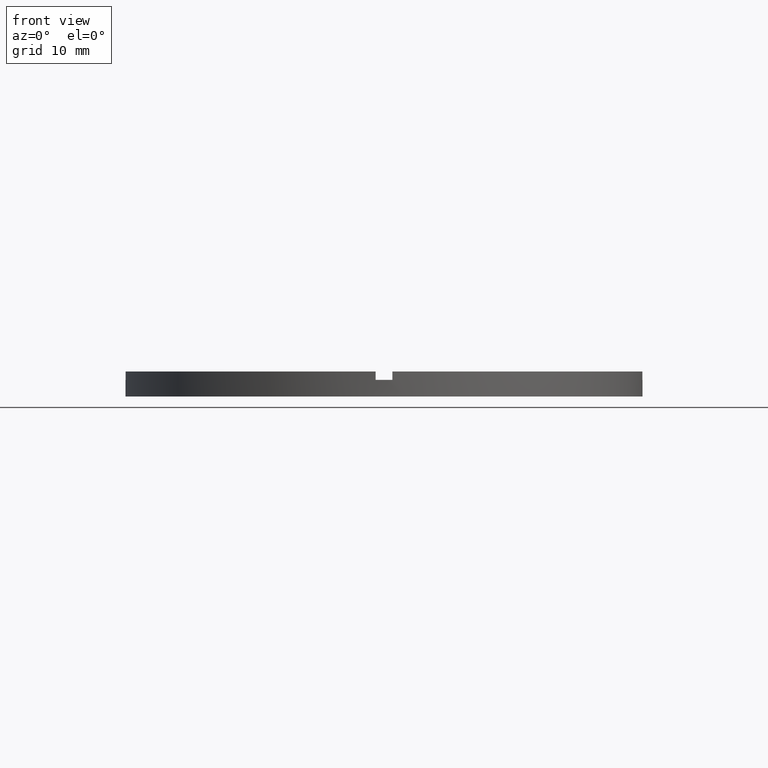
[diagram: clean part render]
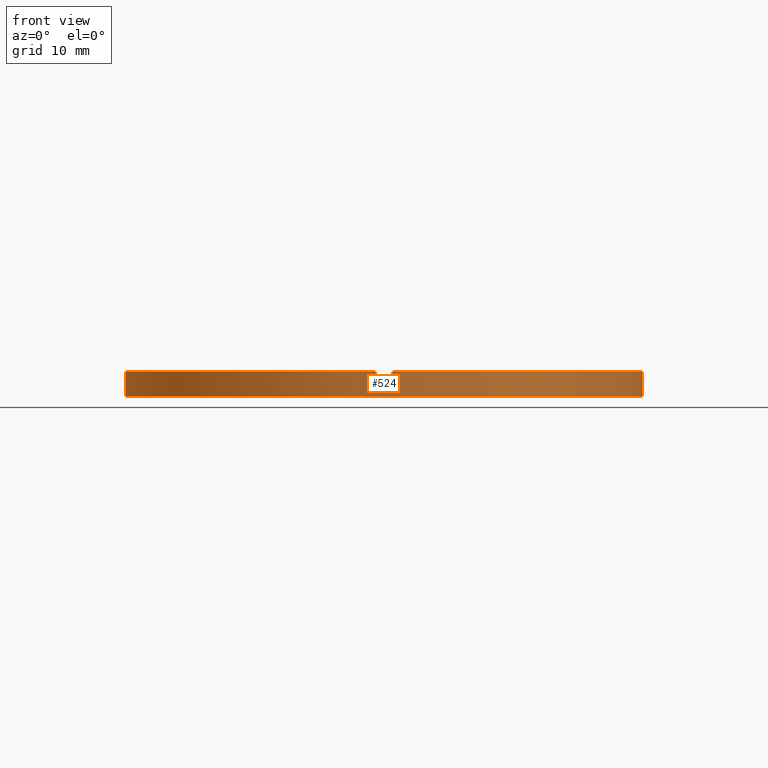
[diagram: same view with one face highlighted and labeled with its STEP entity id]
A machine part, front view. The second image highlights one B-rep face of the part: STEP entity #524.
In plain terms, the highlighted cylindrical surface (partial cylindrical patch) has radius 31 mm, axis along (-0, -0, -1).
Its self-contained STEP definition (entity closure, byte-faithful):
#4 = CIRCLE ( 'NONE', #220, 31.00000000000000000 ) ;
#6 = EDGE_CURVE ( 'NONE', #69, #391, #537, .T. ) ;
#12 = CARTESIAN_POINT ( 'NONE',  ( -31.00000000000000000, 0.000000000000000000, 0.000000000000000000 ) ) ;
#17 = CARTESIAN_POINT ( 'NONE',  ( -30.98386676965933617, -1.000000000000025535, 3.000000000000000000 ) ) ;
#19 = DIRECTION ( 'NONE',  ( 0.000000000000000000, 0.000000000000000000, 1.000000000000000000 ) ) ;
#20 = VERTEX_POINT ( 'NONE', #611 ) ;
#24 = AXIS2_PLACEMENT_3D ( 'NONE', #273, #780, #117 ) ;
#26 = ORIENTED_EDGE ( 'NONE', *, *, #78, .F. ) ;
#29 = CARTESIAN_POINT ( 'NONE',  ( 30.98386676965932907, -1.000000000000158762, 2.000000000000000000 ) ) ;
#30 = VERTEX_POINT ( 'NONE', #80 ) ;
#38 = CARTESIAN_POINT ( 'NONE',  ( 30.98386676965932907, -1.000000000000158762, 3.000000000000000000 ) ) ;
#45 = EDGE_CURVE ( 'NONE', #569, #309, #778, .T. ) ;
#50 = VERTEX_POINT ( 'NONE', #532 ) ;
#61 = CIRCLE ( 'NONE', #659, 31.00000000000000000 ) ;
#68 = VERTEX_POINT ( 'NONE', #89 ) ;
#69 = VERTEX_POINT ( 'NONE', #466 ) ;
#75 = AXIS2_PLACEMENT_3D ( 'NONE', #577, #19, #658 ) ;
#78 = EDGE_CURVE ( 'NONE', #50, #68, #540, .T. ) ;
#80 = CARTESIAN_POINT ( 'NONE',  ( 31.00000000000000000, 3.796405077356795115E-15, 0.000000000000000000 ) ) ;
#89 = CARTESIAN_POINT ( 'NONE',  ( 30.98386676965932907, -1.000000000000158762, 3.000000000000000000 ) ) ;
#93 = CARTESIAN_POINT ( 'NONE',  ( 0.000000000000000000, 0.000000000000000000, 3.000000000000000000 ) ) ;
#94 = DIRECTION ( 'NONE',  ( 0.000000000000000000, 0.000000000000000000, 1.000000000000000000 ) ) ;
#96 = EDGE_CURVE ( 'NONE', #645, #180, #549, .T. ) ;
#103 = AXIS2_PLACEMENT_3D ( 'NONE', #223, #525, #295 ) ;
#110 = VECTOR ( 'NONE', #637, 1000.000000000000000 ) ;
#116 = EDGE_CURVE ( 'NONE', #569, #391, #4, .T. ) ;
#117 = DIRECTION ( 'NONE',  ( 1.000000000000000000, 0.000000000000000000, 0.000000000000000000 ) ) ;
#127 = CARTESIAN_POINT ( 'NONE',  ( 0.000000000000000000, 0.000000000000000000, 2.000000000000000000 ) ) ;
#131 = VERTEX_POINT ( 'NONE', #335 ) ;
#140 = DIRECTION ( 'NONE',  ( 0.000000000000000000, 0.000000000000000000, 1.000000000000000000 ) ) ;
#145 = DIRECTION ( 'NONE',  ( -0.000000000000000000, -0.000000000000000000, -1.000000000000000000 ) ) ;
#165 = VECTOR ( 'NONE', #145, 1000.000000000000000 ) ;
#179 = EDGE_CURVE ( 'NONE', #69, #409, #550, .T. ) ;
#180 = VERTEX_POINT ( 'NONE', #263 ) ;
#214 = ORIENTED_EDGE ( 'NONE', *, *, #96, .F. ) ;
#216 = EDGE_CURVE ( 'NONE', #180, #30, #553, .T. ) ;
#220 = AXIS2_PLACEMENT_3D ( 'NONE', #127, #666, #676 ) ;
#223 = CARTESIAN_POINT ( 'NONE',  ( 0.000000000000000000, 0.000000000000000000, 2.000000000000000000 ) ) ;
#233 = DIRECTION ( 'NONE',  ( 1.000000000000000000, 0.000000000000000000, 0.000000000000000000 ) ) ;
#244 = ORIENTED_EDGE ( 'NONE', *, *, #757, .T. ) ;
#249 = CARTESIAN_POINT ( 'NONE',  ( -1.000000000000161426, -30.98386676965932907, 3.000000000000000000 ) ) ;
#261 = EDGE_LOOP ( 'NONE', ( #336, #214, #423, #26, #244, #452, #481, #310, #487, #321, #719, #575 ) ) ;
#263 = CARTESIAN_POINT ( 'NONE',  ( 31.00000000000000000, 3.796405077356795115E-15, 2.000000000000000000 ) ) ;
#267 = VECTOR ( 'NONE', #504, 1000.000000000000000 ) ;
#273 = CARTESIAN_POINT ( 'NONE',  ( 0.000000000000000000, 0.000000000000000000, 3.000000000000000000 ) ) ;
#283 = DIRECTION ( 'NONE',  ( -1.000000000000000000, 0.000000000000000000, 0.000000000000000000 ) ) ;
#295 = DIRECTION ( 'NONE',  ( 1.000000000000000000, 0.000000000000000000, 0.000000000000000000 ) ) ;
#306 = CARTESIAN_POINT ( 'NONE',  ( 0.000000000000000000, 0.000000000000000000, 0.000000000000000000 ) ) ;
#309 = VERTEX_POINT ( 'NONE', #12 ) ;
#310 = ORIENTED_EDGE ( 'NONE', *, *, #179, .F. ) ;
#321 = ORIENTED_EDGE ( 'NONE', *, *, #116, .F. ) ;
#326 = DIRECTION ( 'NONE',  ( -0.000000000000000000, -0.000000000000000000, -1.000000000000000000 ) ) ;
#335 = CARTESIAN_POINT ( 'NONE',  ( 0.9999999999998386846, -30.98386676965933972, 2.000000000000000000 ) ) ;
#336 = ORIENTED_EDGE ( 'NONE', *, *, #216, .F. ) ;
#353 = EDGE_CURVE ( 'NONE', #20, #409, #388, .T. ) ;
#364 = DIRECTION ( 'NONE',  ( 0.000000000000000000, 0.000000000000000000, 1.000000000000000000 ) ) ;
#378 = CARTESIAN_POINT ( 'NONE',  ( 0.000000000000000000, 0.000000000000000000, 3.000000000000000000 ) ) ;
#388 = LINE ( 'NONE', #249, #110 ) ;
#391 = VERTEX_POINT ( 'NONE', #600 ) ;
#407 = EDGE_CURVE ( 'NONE', #309, #30, #61, .T. ) ;
#409 = VERTEX_POINT ( 'NONE', #472 ) ;
#411 = LINE ( 'NONE', #38, #422 ) ;
#413 = CYLINDRICAL_SURFACE ( 'NONE', #610, 31.00000000000000000 ) ;
#422 = VECTOR ( 'NONE', #94, 1000.000000000000000 ) ;
#423 = ORIENTED_EDGE ( 'NONE', *, *, #535, .T. ) ;
#441 = CARTESIAN_POINT ( 'NONE',  ( -31.00000000000000000, 0.000000000000000000, 3.000000000000000000 ) ) ;
#443 = LINE ( 'NONE', #552, #165 ) ;
#448 = DIRECTION ( 'NONE',  ( -0.000000000000000000, -0.000000000000000000, -1.000000000000000000 ) ) ;
#452 = ORIENTED_EDGE ( 'NONE', *, *, #457, .F. ) ;
#457 = EDGE_CURVE ( 'NONE', #20, #131, #539, .T. ) ;
#466 = CARTESIAN_POINT ( 'NONE',  ( -30.98386676965933617, -1.000000000000025535, 3.000000000000000000 ) ) ;
#472 = CARTESIAN_POINT ( 'NONE',  ( -1.000000000000161426, -30.98386676965932907, 3.000000000000000000 ) ) ;
#478 = CARTESIAN_POINT ( 'NONE',  ( -31.00000000000000000, 0.000000000000000000, 2.000000000000000000 ) ) ;
#481 = ORIENTED_EDGE ( 'NONE', *, *, #353, .T. ) ;
#487 = ORIENTED_EDGE ( 'NONE', *, *, #6, .T. ) ;
#504 = DIRECTION ( 'NONE',  ( -0.000000000000000000, -0.000000000000000000, -1.000000000000000000 ) ) ;
#508 = CARTESIAN_POINT ( 'NONE',  ( 31.00000000000000000, 3.796405077356795115E-15, 3.000000000000000000 ) ) ;
#519 = VECTOR ( 'NONE', #570, 1000.000000000000000 ) ;
#523 = VECTOR ( 'NONE', #326, 1000.000000000000000 ) ;
#524 = ADVANCED_FACE ( 'NONE', ( #690 ), #413, .T. ) ;
#525 = DIRECTION ( 'NONE',  ( -0.000000000000000000, 0.000000000000000000, 1.000000000000000000 ) ) ;
#532 = CARTESIAN_POINT ( 'NONE',  ( 0.9999999999998386846, -30.98386676965933972, 3.000000000000000000 ) ) ;
#535 = EDGE_CURVE ( 'NONE', #645, #68, #411, .T. ) ;
#537 = LINE ( 'NONE', #17, #523 ) ;
#539 = CIRCLE ( 'NONE', #103, 31.00000000000000000 ) ;
#540 = CIRCLE ( 'NONE', #628, 31.00000000000000000 ) ;
#549 = CIRCLE ( 'NONE', #75, 31.00000000000000000 ) ;
#550 = CIRCLE ( 'NONE', #24, 31.00000000000000000 ) ;
#552 = CARTESIAN_POINT ( 'NONE',  ( 0.9999999999998386846, -30.98386676965933972, 3.000000000000000000 ) ) ;
#553 = LINE ( 'NONE', #508, #267 ) ;
#569 = VERTEX_POINT ( 'NONE', #478 ) ;
#570 = DIRECTION ( 'NONE',  ( -0.000000000000000000, -0.000000000000000000, -1.000000000000000000 ) ) ;
#575 = ORIENTED_EDGE ( 'NONE', *, *, #407, .T. ) ;
#577 = CARTESIAN_POINT ( 'NONE',  ( 0.000000000000000000, 0.000000000000000000, 2.000000000000000000 ) ) ;
#600 = CARTESIAN_POINT ( 'NONE',  ( -30.98386676965933617, -1.000000000000025535, 2.000000000000000000 ) ) ;
#605 = DIRECTION ( 'NONE',  ( 1.000000000000000000, 0.000000000000000000, 0.000000000000000000 ) ) ;
#610 = AXIS2_PLACEMENT_3D ( 'NONE', #378, #448, #283 ) ;
#611 = CARTESIAN_POINT ( 'NONE',  ( -1.000000000000161426, -30.98386676965932907, 2.000000000000000000 ) ) ;
#628 = AXIS2_PLACEMENT_3D ( 'NONE', #93, #140, #233 ) ;
#637 = DIRECTION ( 'NONE',  ( 0.000000000000000000, 0.000000000000000000, 1.000000000000000000 ) ) ;
#645 = VERTEX_POINT ( 'NONE', #29 ) ;
#658 = DIRECTION ( 'NONE',  ( 1.000000000000000000, 0.000000000000000000, 0.000000000000000000 ) ) ;
#659 = AXIS2_PLACEMENT_3D ( 'NONE', #306, #364, #605 ) ;
#666 = DIRECTION ( 'NONE',  ( 0.000000000000000000, 0.000000000000000000, 1.000000000000000000 ) ) ;
#676 = DIRECTION ( 'NONE',  ( 1.000000000000000000, 0.000000000000000000, 0.000000000000000000 ) ) ;
#690 = FACE_OUTER_BOUND ( 'NONE', #261, .T. ) ;
#719 = ORIENTED_EDGE ( 'NONE', *, *, #45, .T. ) ;
#757 = EDGE_CURVE ( 'NONE', #50, #131, #443, .T. ) ;
#778 = LINE ( 'NONE', #441, #519 ) ;
#780 = DIRECTION ( 'NONE',  ( 0.000000000000000000, 0.000000000000000000, 1.000000000000000000 ) ) ;